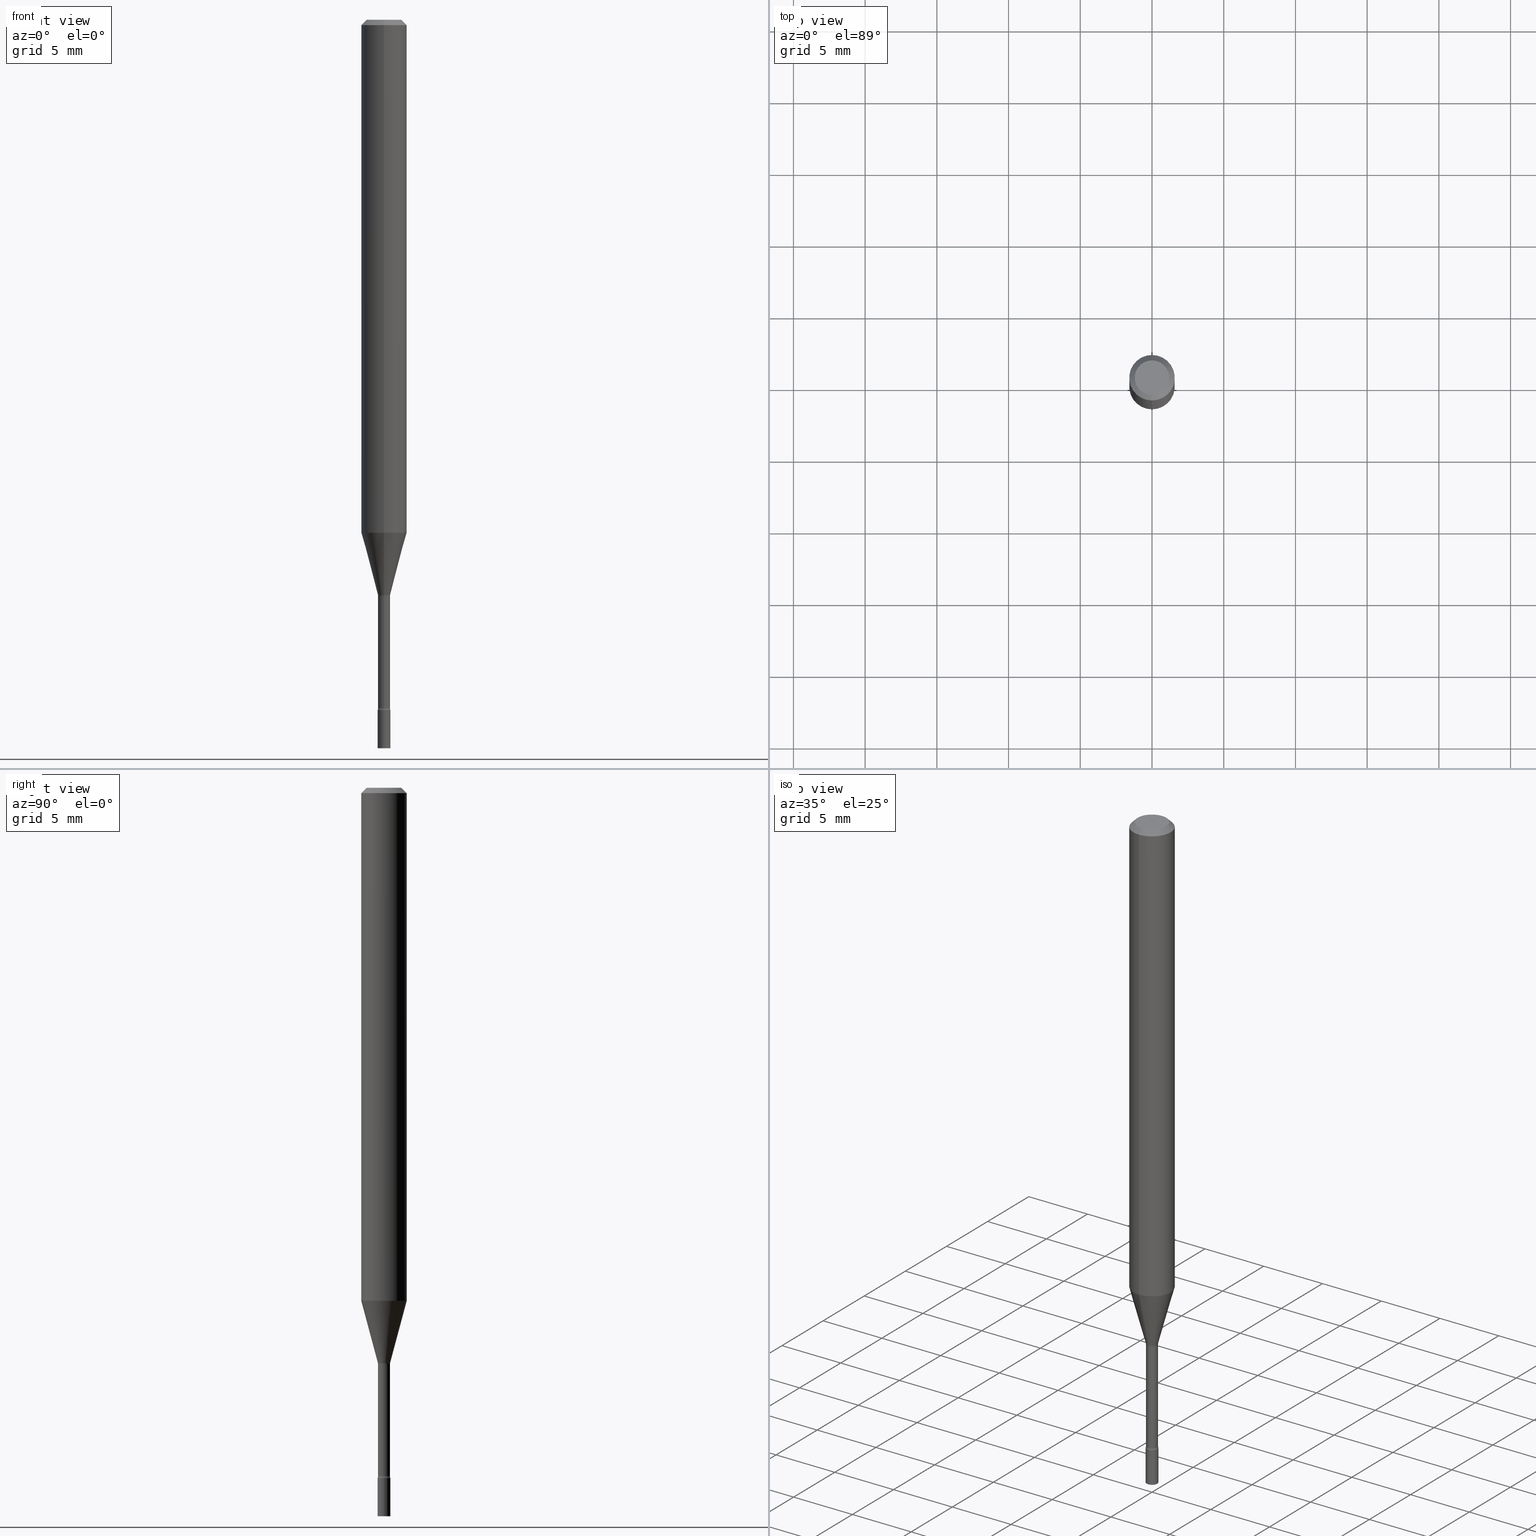
[diagram: canonical four-view strip — front | top / right | iso, engineering-drawing reading convention]
A machine part, canonical four-view strip (front | top / right | iso — engineering-drawing reading convention). The complete STEP part file that produces these views, byte-faithful:
ISO-10303-21;
HEADER;
FILE_DESCRIPTION (( 'STEP AP203' ),
    '1' );
FILE_NAME ('03487.STEP',
    '2024-03-08T21:30:55',
    ( '' ),
    ( '' ),
    'SwSTEP 2.0',
    'SolidWorks 2023',
    '' );
FILE_SCHEMA (( 'CONFIG_CONTROL_DESIGN' ));
ENDSEC;

DATA;
#1 =( CONVERSION_BASED_UNIT ( 'INCH', #338 ) LENGTH_UNIT ( ) NAMED_UNIT ( #52 ) );
#2 = CARTESIAN_POINT ( 'NONE',  ( 1.222018468595585719E-16, 0.01749999999999301767, -2.000000000000000000 ) ) ;
#3 = CC_DESIGN_PERSON_AND_ORGANIZATION_ASSIGNMENT ( #205, #417, ( #334 ) ) ;
#4 = PERSON_AND_ORGANIZATION ( #108, #89 ) ;
#5 = DIRECTION ( 'NONE',  ( -6.982962677686265133E-15, -1.000000000000000000, 0.000000000000000000 ) ) ;
#6 = CARTESIAN_POINT ( 'NONE',  ( 0.000000000000000000, 0.000000000000000000, 0.000000000000000000 ) ) ;
#7 = CARTESIAN_POINT ( 'NONE',  ( -1.222018468594633662E-16, -0.01750000000000662484, -1.894999999999999796 ) ) ;
#8 = PRODUCT ( '03487', '03487', '', ( #56 ) ) ;
#9 = DATE_AND_TIME ( #133, #181 ) ;
#10 = AXIS2_PLACEMENT_3D ( 'NONE', #101, #261, #152 ) ;
#11 = PLANE ( 'NONE',  #445 ) ;
#12 = CIRCLE ( 'NONE', #345, 0.06250000000000000000 ) ;
#13 = APPLICATION_PROTOCOL_DEFINITION ( 'international standard', 'config_control_design', 1994, #84 ) ;
#14 = DIRECTION ( 'NONE',  ( 2.445498038093453575E-29, -3.491439477086658862E-15, -1.000000000000000000 ) ) ;
#15 = PRODUCT_RELATED_PRODUCT_CATEGORY ( 'detail', '', ( #8 ) ) ;
#16 = ORIENTED_EDGE ( 'NONE', *, *, #426, .F. ) ;
#17 = DIRECTION ( 'NONE',  ( -6.982962677686265922E-15, -1.000000000000000000, 0.000000000000000000 ) ) ;
#18 = ORIENTED_EDGE ( 'NONE', *, *, #440, .T. ) ;
#19 = MANIFOLD_SOLID_BREP ( 'Body-Move/Copy2[1]', #80 ) ;
#20 = CARTESIAN_POINT ( 'NONE',  ( -1.148697360479003729E-16, -0.01645000000000552270, -1.581974787463811039 ) ) ;
#21 = CONICAL_SURFACE ( 'NONE', #461, 0.01696111260566397771, 0.2617993877991496299 ) ;
#22 = AXIS2_PLACEMENT_3D ( 'NONE', #457, #14, #376 ) ;
#23 = VECTOR ( 'NONE', #121, 39.37007874015748143 ) ;
#24 = CC_DESIGN_PERSON_AND_ORGANIZATION_ASSIGNMENT ( #208, #449, ( #334 ) ) ;
#25 = CARTESIAN_POINT ( 'NONE',  ( -0.01750000000000000167, 1.243449787580175444E-16, -8.608136407946085539E-31 ) ) ;
#26 = DIRECTION ( 'NONE',  ( -2.445498038093453575E-29, 3.491439477086658862E-15, 1.000000000000000000 ) ) ;
#27 = FACE_OUTER_BOUND ( 'NONE', #309, .T. ) ;
#28 = EDGE_CURVE ( 'NONE', #100, #94, #38, .T. ) ;
#29 = VECTOR ( 'NONE', #138, 39.37007874015748143 ) ;
#30 = CC_DESIGN_SECURITY_CLASSIFICATION ( #403, ( #334 ) ) ;
#31 = DIRECTION ( 'NONE',  ( -2.445498038093453575E-29, 3.491439477086658862E-15, 1.000000000000000000 ) ) ;
#32 = EDGE_CURVE ( 'NONE', #198, #276, #333, .T. ) ;
#33 = DIRECTION ( 'NONE',  ( -6.982962677686265922E-15, -1.000000000000000000, 3.483106191921935554E-15 ) ) ;
#34 = VERTEX_POINT ( 'NONE', #495 ) ;
#35 = EDGE_CURVE ( 'NONE', #257, #34, #336, .T. ) ;
#36 = DIRECTION ( 'NONE',  ( -6.982962677686265133E-15, -1.000000000000000000, 3.491439477086658862E-15 ) ) ;
#37 = ORIENTED_EDGE ( 'NONE', *, *, #109, .F. ) ;
#38 = CIRCLE ( 'NONE', #173, 0.01750000000000000167 ) ;
#39 =( GEOMETRIC_REPRESENTATION_CONTEXT ( 3 ) GLOBAL_UNCERTAINTY_ASSIGNED_CONTEXT ( ( #459 ) ) GLOBAL_UNIT_ASSIGNED_CONTEXT ( ( #1, #87, #447 ) ) REPRESENTATION_CONTEXT ( 'NONE', 'WORKASPACE' ) );
#40 = FACE_OUTER_BOUND ( 'NONE', #96, .T. ) ;
#41 = ORIENTED_EDGE ( 'NONE', *, *, #32, .T. ) ;
#42 = CARTESIAN_POINT ( 'NONE',  ( 4.620680557649244882E-29, -6.597107229085755306E-15, -1.889486607215153047 ) ) ;
#43 = VERTEX_POINT ( 'NONE', #176 ) ;
#44 = COORDINATED_UNIVERSAL_TIME_OFFSET ( 5, 0, .BEHIND. ) ;
#45 = FACE_OUTER_BOUND ( 'NONE', #140, .T. ) ;
#46 = CC_DESIGN_PERSON_AND_ORGANIZATION_ASSIGNMENT ( #331, #378, ( #8 ) ) ;
#47 = APPROVAL_ROLE ( '' ) ;
#48 = CIRCLE ( 'NONE', #145, 0.01500000000000002720 ) ;
#49 = CARTESIAN_POINT ( 'NONE',  ( 1.205159535236746208E-16, 0.01696111260565846823, -1.578092501787273116 ) ) ;
#50 = DIRECTION ( 'NONE',  ( 1.000000000000000000, 0.000000000000000000, 0.000000000000000000 ) ) ;
#51 = LINE ( 'NONE', #490, #29 ) ;
#52 = DIMENSIONAL_EXPONENTS ( 1.000000000000000000, 0.000000000000000000, 0.000000000000000000, 0.000000000000000000, 0.000000000000000000, 0.000000000000000000, 0.000000000000000000 ) ;
#53 = SECURITY_CLASSIFICATION_LEVEL ( 'unclassified' ) ;
#54 = LINE ( 'NONE', #49, #253 ) ;
#55 = ORIENTED_EDGE ( 'NONE', *, *, #250, .F. ) ;
#56 = MECHANICAL_CONTEXT ( 'NONE', #84, 'mechanical' ) ;
#57 = AXIS2_PLACEMENT_3D ( 'NONE', #275, #366, #443 ) ;
#58 = DIRECTION ( 'NONE',  ( -2.445498038093453575E-29, 3.491439477086658862E-15, 1.000000000000000000 ) ) ;
#59 = APPLICATION_CONTEXT ( 'configuration controlled 3d designs of mechanical parts and assemblies' ) ;
#60 = CIRCLE ( 'NONE', #221, 0.01696111260566397771 ) ;
#61 = ORIENTED_EDGE ( 'NONE', *, *, #371, .F. ) ;
#62 = CARTESIAN_POINT ( 'NONE',  ( 1.168842800325365252E-16, 0.01645000000000000975, -5.743417939807557706E-17 ) ) ;
#63 = CALENDAR_DATE ( 2024, 8, 3 ) ;
#64 = CARTESIAN_POINT ( 'NONE',  ( -2.196141762131871604E-16, -0.03145000000000663931, -1.889486607215153047 ) ) ;
#65 = EDGE_CURVE ( 'NONE', #342, #257, #54, .T. ) ;
#66 = EDGE_LOOP ( 'NONE', ( #404, #419, #154, #86 ) ) ;
#67 = DIRECTION ( 'NONE',  ( -6.982962677686265133E-15, -1.000000000000000000, 3.491439477086659256E-15 ) ) ;
#68 = CIRCLE ( 'NONE', #489, 0.01645000000000002363 ) ;
#69 = DIRECTION ( 'NONE',  ( -2.445468806185136597E-29, 3.491481338843145583E-15, 1.000000000000000000 ) ) ;
#70 = CARTESIAN_POINT ( 'NONE',  ( 3.859222117050766275E-29, -5.509814459234533825E-15, -1.578092501787273116 ) ) ;
#71 = EDGE_CURVE ( 'NONE', #316, #456, #213, .T. ) ;
#72 = AXIS2_PLACEMENT_3D ( 'NONE', #432, #468, #464 ) ;
#73 = AXIS2_PLACEMENT_3D ( 'NONE', #477, #163, #33 ) ;
#74 = CARTESIAN_POINT ( 'NONE',  ( 4.634163387720833649E-29, -6.616357137107760427E-15, -1.894999999999999796 ) ) ;
#75 = ORIENTED_EDGE ( 'NONE', *, *, #28, .T. ) ;
#76 = DIRECTION ( 'NONE',  ( -2.445498038093453575E-29, 3.491439477086658862E-15, 1.000000000000000000 ) ) ;
#77 = DIRECTION ( 'NONE',  ( -2.445468806185136597E-29, 3.491481338843145583E-15, 1.000000000000000000 ) ) ;
#78 = CYLINDRICAL_SURFACE ( 'NONE', #90, 0.06250000000000000000 ) ;
#79 = ORIENTED_EDGE ( 'NONE', *, *, #165, .F. ) ;
#80 = CLOSED_SHELL ( 'NONE', ( #310, #344, #416, #130 ) ) ;
#81 = AXIS2_PLACEMENT_3D ( 'NONE', #74, #313, #237 ) ;
#82 = CARTESIAN_POINT ( 'NONE',  ( -4.364351673553573540E-16, -0.06250000000000494049, -1.408139060311453195 ) ) ;
#83 = ORIENTED_EDGE ( 'NONE', *, *, #142, .F. ) ;
#84 = APPLICATION_CONTEXT ( 'configuration controlled 3d designs of mechanical parts and assemblies' ) ;
#85 = CALENDAR_DATE ( 2024, 8, 3 ) ;
#86 = ORIENTED_EDGE ( 'NONE', *, *, #32, .F. ) ;
#87 =( NAMED_UNIT ( * ) PLANE_ANGLE_UNIT ( ) SI_UNIT ( $, .RADIAN. ) );
#88 = DIRECTION ( 'NONE',  ( -2.445498038093453295E-29, 3.491439477086658862E-15, 1.000000000000000000 ) ) ;
#89 = ORGANIZATION ( 'UNSPECIFIED', 'UNSPECIFIED', '' ) ;
#90 = AXIS2_PLACEMENT_3D ( 'NONE', #435, #511, #156 ) ;
#91 = DIRECTION ( 'NONE',  ( 7.105427357601001859E-15, 1.000000000000000000, 0.000000000000000000 ) ) ;
#92 = CALENDAR_DATE ( 2024, 8, 3 ) ;
#93 = PLANE ( 'NONE',  #350 ) ;
#94 = VERTEX_POINT ( 'NONE', #374 ) ;
#95 = CARTESIAN_POINT ( 'NONE',  ( 0.000000000000000000, 0.000000000000000000, 0.000000000000000000 ) ) ;
#96 = EDGE_LOOP ( 'NONE', ( #381, #119, #510, #295 ) ) ;
#97 = ADVANCED_FACE ( 'NONE', ( #206 ), #412, .T. ) ;
#98 = VECTOR ( 'NONE', #503, 39.37007874015748854 ) ;
#99 = LINE ( 'NONE', #488, #227 ) ;
#100 = VERTEX_POINT ( 'NONE', #209 ) ;
#101 = CARTESIAN_POINT ( 'NONE',  ( 3.668247057140187510E-31, -5.237159215629998202E-17, -0.01500000000000003067 ) ) ;
#102 = APPROVAL ( #454, 'UNSPECIFIED' ) ;
#103 = VERTEX_POINT ( 'NONE', #7 ) ;
#104 = DIRECTION ( 'NONE',  ( 1.000000000000000000, -6.982962677686248567E-15, 0.000000000000000000 ) ) ;
#105 = FACE_OUTER_BOUND ( 'NONE', #279, .T. ) ;
#106 = VECTOR ( 'NONE', #88, 39.37007874015748143 ) ;
#107 = APPROVAL_PERSON_ORGANIZATION ( #414, #102, #47 ) ;
#108 = PERSON ( 'UNSPECIFIED', 'UNSPECIFIED', 'UNSPECIFIED', ('UNSPECIFIED'), ('UNSPECIFIED'), ('UNSPECIFIED') ) ;
#109 = EDGE_CURVE ( 'NONE', #358, #276, #249, .T. ) ;
#110 = FACE_OUTER_BOUND ( 'NONE', #234, .T. ) ;
#111 = EDGE_CURVE ( 'NONE', #409, #43, #99, .T. ) ;
#112 = CARTESIAN_POINT ( 'NONE',  ( 4.634218782187094306E-29, -6.616277809079216998E-15, -1.894999999999999796 ) ) ;
#113 = ORIENTED_EDGE ( 'NONE', *, *, #28, .F. ) ;
#114 = DIRECTION ( 'NONE',  ( -6.982962677686265922E-15, -1.000000000000000000, 4.370956789862821150E-15 ) ) ;
#115 = ORIENTED_EDGE ( 'NONE', *, *, #410, .F. ) ;
#116 = CIRCLE ( 'NONE', #220, 0.01645000000000002363 ) ;
#117 = CONICAL_SURFACE ( 'NONE', #137, 0.01696111260566397771, 0.2617993877991496299 ) ;
#118 = DIRECTION ( 'NONE',  ( -6.982962677686266711E-15, -1.000000000000000000, 0.000000000000000000 ) ) ;
#119 = ORIENTED_EDGE ( 'NONE', *, *, #497, .F. ) ;
#120 = ADVANCED_FACE ( 'NONE', ( #256 ), #93, .F. ) ;
#121 = DIRECTION ( 'NONE',  ( -2.445468806185136877E-29, 3.491481338843145188E-15, 1.000000000000000000 ) ) ;
#122 = ORIENTED_EDGE ( 'NONE', *, *, #337, .F. ) ;
#123 = CARTESIAN_POINT ( 'NONE',  ( 0.000000000000000000, 0.000000000000000000, 0.000000000000000000 ) ) ;
#124 = ORIENTED_EDGE ( 'NONE', *, *, #406, .F. ) ;
#125 = CONICAL_SURFACE ( 'NONE', #22, 0.06250000000000000000, 0.7853981633974483900 ) ;
#126 = ADVANCED_FACE ( 'NONE', ( #294 ), #125, .T. ) ;
#127 = CC_DESIGN_APPROVAL ( #383, ( #471 ) ) ;
#128 = COORDINATED_UNIVERSAL_TIME_OFFSET ( 5, 0, .BEHIND. ) ;
#129 = ORIENTED_EDGE ( 'NONE', *, *, #217, .T. ) ;
#130 = ADVANCED_FACE ( 'NONE', ( #45 ), #11, .T. ) ;
#131 = DATE_AND_TIME ( #239, #438 ) ;
#132 = DIRECTION ( 'NONE',  ( 2.445498038093453575E-29, -3.491439477086658862E-15, -1.000000000000000000 ) ) ;
#133 = CALENDAR_DATE ( 2024, 8, 3 ) ;
#134 = LINE ( 'NONE', #287, #158 ) ;
#135 = CONICAL_SURFACE ( 'NONE', #195, 0.06250000000000000000, 0.7853981633974483900 ) ;
#136 = DIRECTION ( 'NONE',  ( -6.982962677686265133E-15, -1.000000000000000000, 0.000000000000000000 ) ) ;
#137 = AXIS2_PLACEMENT_3D ( 'NONE', #364, #31, #161 ) ;
#138 = DIRECTION ( 'NONE',  ( 4.937700262164548042E-15, 0.7071067811865451302, -0.7071067811865499042 ) ) ;
#139 = EDGE_CURVE ( 'NONE', #301, #276, #244, .T. ) ;
#140 = EDGE_LOOP ( 'NONE', ( #83, #124 ) ) ;
#141 = CARTESIAN_POINT ( 'NONE',  ( 1.222018468595560081E-16, 0.01749999999999338543, -1.894999999999999796 ) ) ;
#142 = EDGE_CURVE ( 'NONE', #480, #292, #185, .T. ) ;
#143 = DIRECTION ( 'NONE',  ( 1.000000000000000000, -6.982962677686248567E-15, 0.000000000000000000 ) ) ;
#144 = ADVANCED_FACE ( 'NONE', ( #251 ), #21, .T. ) ;
#145 = AXIS2_PLACEMENT_3D ( 'NONE', #304, #390, #347 ) ;
#146 = DIRECTION ( 'NONE',  ( -6.982962677686267499E-15, -1.000000000000000000, 0.000000000000000000 ) ) ;
#147 = ORIENTED_EDGE ( 'NONE', *, *, #201, .F. ) ;
#148 = CARTESIAN_POINT ( 'NONE',  ( 0.000000000000000000, 0.000000000000000000, 0.000000000000000000 ) ) ;
#149 = DIRECTION ( 'NONE',  ( -2.445498038093453295E-29, 3.491439477086658862E-15, 1.000000000000000000 ) ) ;
#150 = CARTESIAN_POINT ( 'NONE',  ( 0.000000000000000000, 0.000000000000000000, 0.000000000000000000 ) ) ;
#151 = AXIS2_PLACEMENT_3D ( 'NONE', #194, #363, #247 ) ;
#152 = DIRECTION ( 'NONE',  ( -6.982962677686265922E-15, -1.000000000000000000, 3.483106191921935554E-15 ) ) ;
#153 = DIRECTION ( 'NONE',  ( 1.000000000000000000, -6.982962677686265922E-15, 4.876176775795936353E-29 ) ) ;
#154 = ORIENTED_EDGE ( 'NONE', *, *, #109, .T. ) ;
#155 = ADVANCED_FACE ( 'NONE', ( #332 ), #135, .T. ) ;
#156 = DIRECTION ( 'NONE',  ( -6.982962677686265922E-15, -1.000000000000000000, 3.491439477086658862E-15 ) ) ;
#157 = ORIENTED_EDGE ( 'NONE', *, *, #371, .T. ) ;
#158 = VECTOR ( 'NONE', #452, 39.37007874015748143 ) ;
#159 = DIRECTION ( 'NONE',  ( -6.982962677686266711E-15, -1.000000000000000000, 3.491439477086659256E-15 ) ) ;
#160 = ORIENTED_EDGE ( 'NONE', *, *, #190, .T. ) ;
#161 = DIRECTION ( 'NONE',  ( -6.982962677686266711E-15, -1.000000000000000000, 0.000000000000000000 ) ) ;
#162 = EDGE_LOOP ( 'NONE', ( #283, #324 ) ) ;
#163 = DIRECTION ( 'NONE',  ( -2.445498038093453575E-29, 3.491439477086658862E-15, 1.000000000000000000 ) ) ;
#164 = ORIENTED_EDGE ( 'NONE', *, *, #406, .T. ) ;
#165 = EDGE_CURVE ( 'NONE', #316, #358, #116, .T. ) ;
#166 = CLOSED_SHELL ( 'NONE', ( #326, #236, #375, #155, #469, #144, #504, #97, #126, #487, #120, #262, #228, #433 ) ) ;
#167 = CIRCLE ( 'NONE', #264, 0.01696111260566397771 ) ;
#168 = DATE_AND_TIME ( #92, #306 ) ;
#169 = DIRECTION ( 'NONE',  ( -6.982962677686266711E-15, -1.000000000000000000, 0.000000000000000000 ) ) ;
#170 = DIRECTION ( 'NONE',  ( -2.445498038093453575E-29, 3.491439477086658862E-15, 1.000000000000000000 ) ) ;
#171 = EDGE_CURVE ( 'NONE', #192, #43, #134, .T. ) ;
#172 = DIRECTION ( 'NONE',  ( -2.445498038093453575E-29, 3.491439477086658862E-15, 1.000000000000000000 ) ) ;
#173 = AXIS2_PLACEMENT_3D ( 'NONE', #442, #77, #232 ) ;
#174 = DATE_TIME_ROLE ( 'classification_date' ) ;
#175 = DIRECTION ( 'NONE',  ( -1.000000000000000000, 6.982962677686265922E-15, -4.876176775795935793E-29 ) ) ;
#176 = CARTESIAN_POINT ( 'NONE',  ( -4.364351673553912750E-16, -0.06250000000000005551, -0.01499999999999981209 ) ) ;
#177 = EDGE_LOOP ( 'NONE', ( #446, #157, #365, #501 ) ) ;
#178 = FACE_OUTER_BOUND ( 'NONE', #66, .T. ) ;
#179 = ORIENTED_EDGE ( 'NONE', *, *, #484, .F. ) ;
#180 = LINE ( 'NONE', #25, #513 ) ;
#181 = LOCAL_TIME ( 16, 30, 55.00000000000000000, #486 ) ;
#182 = DIRECTION ( 'NONE',  ( -2.445498038093453575E-29, 3.491439477086658862E-15, 1.000000000000000000 ) ) ;
#183 = CARTESIAN_POINT ( 'NONE',  ( 3.868669994914111510E-29, -5.523435448950248304E-15, -1.581974787463811039 ) ) ;
#184 = MANIFOLD_SOLID_BREP ( 'Body-Move/Copy2[2]', #166 ) ;
#185 = CIRCLE ( 'NONE', #451, 0.01750000000000000167 ) ;
#186 = EDGE_LOOP ( 'NONE', ( #520, #392, #115, #147 ) ) ;
#187 = LOCAL_TIME ( 16, 30, 55.00000000000000000, #498 ) ;
#188 = PLANE ( 'NONE',  #81 ) ;
#189 = ORIENTED_EDGE ( 'NONE', *, *, #277, .F. ) ;
#190 = EDGE_CURVE ( 'NONE', #230, #34, #51, .T. ) ;
#191 = FACE_OUTER_BOUND ( 'NONE', #274, .T. ) ;
#192 = VERTEX_POINT ( 'NONE', #455 ) ;
#193 = CARTESIAN_POINT ( 'NONE',  ( 0.01750000000000000167, -7.105164524545800359E-15, -2.000000000000000000 ) ) ;
#194 = CARTESIAN_POINT ( 'NONE',  ( 3.868716239056058074E-29, -5.523369224706926142E-15, -1.581974787463811039 ) ) ;
#195 = AXIS2_PLACEMENT_3D ( 'NONE', #328, #132, #286 ) ;
#196 = AXIS2_PLACEMENT_3D ( 'NONE', #123, #396, #153 ) ;
#197 = FACE_OUTER_BOUND ( 'NONE', #512, .T. ) ;
#198 = VERTEX_POINT ( 'NONE', #470 ) ;
#199 = CYLINDRICAL_SURFACE ( 'NONE', #196, 0.01750000000000000167 ) ;
#200 = ORIENTED_EDGE ( 'NONE', *, *, #171, .T. ) ;
#201 = EDGE_CURVE ( 'NONE', #301, #409, #505, .T. ) ;
#202 = DIRECTION ( 'NONE',  ( 2.438088387897960049E-29, -3.491481338843145188E-15, -1.000000000000000000 ) ) ;
#203 = AXIS2_PLACEMENT_3D ( 'NONE', #148, #69, #302 ) ;
#204 = CC_DESIGN_APPROVAL ( #354, ( #403 ) ) ;
#205 = PERSON_AND_ORGANIZATION ( #108, #89 ) ;
#206 = FACE_OUTER_BOUND ( 'NONE', #177, .T. ) ;
#207 = CC_DESIGN_DATE_AND_TIME_ASSIGNMENT ( #9, #174, ( #403 ) ) ;
#208 = PERSON_AND_ORGANIZATION ( #108, #89 ) ;
#209 = CARTESIAN_POINT ( 'NONE',  ( 0.01750000000000000167, -6.738558983967269622E-15, -1.894999999999999796 ) ) ;
#210 = PERSON_AND_ORGANIZATION_ROLE ( 'classification_officer' ) ;
#211 = CARTESIAN_POINT ( 'NONE',  ( -1.148697360479391256E-16, -0.01645000000000000975, 5.743417939807557706E-17 ) ) ;
#212 = ORIENTED_EDGE ( 'NONE', *, *, #139, .F. ) ;
#213 = CIRCLE ( 'NONE', #325, 0.01500000000000001853 ) ;
#214 = DIRECTION ( 'NONE',  ( -6.982962677686265922E-15, -1.000000000000000000, 3.491439477086658862E-15 ) ) ;
#215 = ORIENTED_EDGE ( 'NONE', *, *, #142, .T. ) ;
#216 = DIRECTION ( 'NONE',  ( -6.982962677686265133E-15, -1.000000000000000000, 3.491439477086658862E-15 ) ) ;
#217 = EDGE_CURVE ( 'NONE', #43, #34, #314, .T. ) ;
#218 = ORIENTED_EDGE ( 'NONE', *, *, #337, .T. ) ;
#219 = DIRECTION ( 'NONE',  ( -1.000000000000000000, 6.982962677686265922E-15, -4.883557194083112340E-29 ) ) ;
#220 = AXIS2_PLACEMENT_3D ( 'NONE', #450, #170, #330 ) ;
#221 = AXIS2_PLACEMENT_3D ( 'NONE', #70, #321, #118 ) ;
#222 = CARTESIAN_POINT ( 'NONE',  ( 4.634163387720833649E-29, -6.616357137107760427E-15, -1.894999999999999796 ) ) ;
#223 = DIRECTION ( 'NONE',  ( -6.982962677686265133E-15, -1.000000000000000000, 0.000000000000000000 ) ) ;
#224 = CARTESIAN_POINT ( 'NONE',  ( 4.620735790948512888E-29, -6.597028131857518324E-15, -1.889486607215153047 ) ) ;
#225 = ORIENTED_EDGE ( 'NONE', *, *, #217, .F. ) ;
#226 = CARTESIAN_POINT ( 'NONE',  ( 3.316907271900976096E-16, 0.04749999999999999362, -1.803013248422673352E-16 ) ) ;
#227 = VECTOR ( 'NONE', #379, 39.37007874015748143 ) ;
#228 = ADVANCED_FACE ( 'NONE', ( #178 ), #352, .T. ) ;
#229 = CARTESIAN_POINT ( 'NONE',  ( 3.868669994914111510E-29, -5.523435448950248304E-15, -1.581974787463811039 ) ) ;
#230 = VERTEX_POINT ( 'NONE', #386 ) ;
#231 = CARTESIAN_POINT ( 'NONE',  ( -1.148697360478930266E-16, -0.01645000000000661905, -1.889486607215153047 ) ) ;
#232 = DIRECTION ( 'NONE',  ( 1.000000000000000000, -6.982962677686248567E-15, 0.000000000000000000 ) ) ;
#233 = FACE_OUTER_BOUND ( 'NONE', #162, .T. ) ;
#234 = EDGE_LOOP ( 'NONE', ( #271, #189, #473, #218 ) ) ;
#235 = AXIS2_PLACEMENT_3D ( 'NONE', #112, #382, #17 ) ;
#236 = ADVANCED_FACE ( 'NONE', ( #428 ), #340, .T. ) ;
#237 = DIRECTION ( 'NONE',  ( 1.000000000000000000, -6.982962677686265922E-15, 4.876176775795935793E-29 ) ) ;
#238 = ORIENTED_EDGE ( 'NONE', *, *, #71, .T. ) ;
#239 = CALENDAR_DATE ( 2024, 8, 3 ) ;
#240 = EDGE_LOOP ( 'NONE', ( #122, #16 ) ) ;
#241 = APPROVAL_ROLE ( '' ) ;
#242 = DIRECTION ( 'NONE',  ( 1.839019923739595977E-15, 0.2588190451025243477, 0.9659258262890673130 ) ) ;
#243 = EDGE_CURVE ( 'NONE', #316, #198, #430, .T. ) ;
#244 = CIRCLE ( 'NONE', #402, 0.01500000000000002720 ) ;
#245 = CIRCLE ( 'NONE', #431, 0.01750000000000000167 ) ;
#246 = DATE_AND_TIME ( #85, #388 ) ;
#247 = DIRECTION ( 'NONE',  ( -6.982962677686265133E-15, -1.000000000000000000, 0.000000000000000000 ) ) ;
#248 = APPROVAL_DATE_TIME ( #168, #102 ) ;
#249 = LINE ( 'NONE', #211, #106 ) ;
#250 = EDGE_CURVE ( 'NONE', #358, #103, #270, .T. ) ;
#251 = FACE_OUTER_BOUND ( 'NONE', #186, .T. ) ;
#252 = ORIENTED_EDGE ( 'NONE', *, *, #285, .F. ) ;
#253 = VECTOR ( 'NONE', #242, 39.37007874015748143 ) ;
#254 = AXIS2_PLACEMENT_3D ( 'NONE', #6, #290, #50 ) ;
#255 = DESIGN_CONTEXT ( 'detailed design', #59, 'design' ) ;
#256 = FACE_OUTER_BOUND ( 'NONE', #240, .T. ) ;
#257 = VERTEX_POINT ( 'NONE', #307 ) ;
#258 = SHAPE_DEFINITION_REPRESENTATION ( #341, #348 ) ;
#259 = DIRECTION ( 'NONE',  ( -6.982962677686265133E-15, -1.000000000000000000, 3.491439477086659256E-15 ) ) ;
#260 = ORIENTED_EDGE ( 'NONE', *, *, #299, .T. ) ;
#261 = DIRECTION ( 'NONE',  ( -2.445498038093453575E-29, 3.491439477086658862E-15, 1.000000000000000000 ) ) ;
#262 = ADVANCED_FACE ( 'NONE', ( #110 ), #377, .F. ) ;
#263 = AXIS2_PLACEMENT_3D ( 'NONE', #349, #499, #67 ) ;
#264 = AXIS2_PLACEMENT_3D ( 'NONE', #441, #76, #360 ) ;
#265 = CARTESIAN_POINT ( 'NONE',  ( -1.184388162973470360E-16, -0.01696111260566949067, -1.578092501787273116 ) ) ;
#266 = FACE_OUTER_BOUND ( 'NONE', #319, .T. ) ;
#267 = LINE ( 'NONE', #517, #23 ) ;
#268 = CARTESIAN_POINT ( 'NONE',  ( 4.634218782187094306E-29, -6.616277809079216998E-15, -1.894999999999999796 ) ) ;
#269 = EDGE_CURVE ( 'NONE', #94, #100, #361, .T. ) ;
#270 = CIRCLE ( 'NONE', #506, 0.01500000000000001853 ) ;
#271 = ORIENTED_EDGE ( 'NONE', *, *, #71, .F. ) ;
#272 = AXIS2_PLACEMENT_3D ( 'NONE', #493, #327, #136 ) ;
#273 = PLANE ( 'NONE',  #514 ) ;
#274 = EDGE_LOOP ( 'NONE', ( #400, #518, #225, #492 ) ) ;
#275 = CARTESIAN_POINT ( 'NONE',  ( 3.443601309354418931E-29, -4.916432304399119598E-15, -1.408139060311453417 ) ) ;
#276 = VERTEX_POINT ( 'NONE', #20 ) ;
#277 = EDGE_CURVE ( 'NONE', #358, #316, #68, .T. ) ;
#278 = CARTESIAN_POINT ( 'NONE',  ( 4.890937612370273194E-29, -6.982962677686291165E-15, -2.000000000000000000 ) ) ;
#279 = EDGE_LOOP ( 'NONE', ( #75, #312 ) ) ;
#280 = CIRCLE ( 'NONE', #57, 0.06250000000000000000 ) ;
#281 = APPROVAL_PERSON_ORGANIZATION ( #368, #383, #241 ) ;
#282 = APPLICATION_PROTOCOL_DEFINITION ( 'international standard', 'config_control_design', 1994, #59 ) ;
#283 = ORIENTED_EDGE ( 'NONE', *, *, #380, .T. ) ;
#284 = PERSON_AND_ORGANIZATION_ROLE ( 'creator' ) ;
#285 = EDGE_CURVE ( 'NONE', #292, #94, #180, .T. ) ;
#286 = DIRECTION ( 'NONE',  ( 6.982962677686265922E-15, 1.000000000000000000, -3.483106191921935554E-15 ) ) ;
#287 = CARTESIAN_POINT ( 'NONE',  ( -4.287811248607203282E-16, -0.06250000000000005551, -0.01499999999999981209 ) ) ;
#288 = CIRCLE ( 'NONE', #235, 0.01750000000000000167 ) ;
#289 = CIRCLE ( 'NONE', #453, 0.04749999999999999362 ) ;
#290 = DIRECTION ( 'NONE',  ( 0.000000000000000000, 0.000000000000000000, 1.000000000000000000 ) ) ;
#291 = CARTESIAN_POINT ( 'NONE',  ( -2.196141762131943341E-16, -0.03145000000000552215, -1.581974787463811039 ) ) ;
#292 = VERTEX_POINT ( 'NONE', #502 ) ;
#293 = APPROVAL_STATUS ( 'not_yet_approved' ) ;
#294 = FACE_OUTER_BOUND ( 'NONE', #483, .T. ) ;
#295 = ORIENTED_EDGE ( 'NONE', *, *, #508, .T. ) ;
#296 = CARTESIAN_POINT ( 'NONE',  ( 3.859222117050766275E-29, -5.509814459234533825E-15, -1.578092501787273116 ) ) ;
#297 = VECTOR ( 'NONE', #149, 39.37007874015748143 ) ;
#298 = APPROVAL_STATUS ( 'not_yet_approved' ) ;
#299 = EDGE_CURVE ( 'NONE', #342, #198, #48, .T. ) ;
#300 = DIRECTION ( 'NONE',  ( -2.445498038093453575E-29, 3.491439477086658862E-15, 1.000000000000000000 ) ) ;
#301 = VERTEX_POINT ( 'NONE', #265 ) ;
#302 = DIRECTION ( 'NONE',  ( 1.000000000000000000, -6.982962677686265922E-15, 4.876176775795936353E-29 ) ) ;
#303 = EDGE_CURVE ( 'NONE', #192, #230, #437, .T. ) ;
#304 = CARTESIAN_POINT ( 'NONE',  ( 2.234656903965901540E-16, 0.03144999999999447543, -1.581974787463811039 ) ) ;
#305 = AXIS2_PLACEMENT_3D ( 'NONE', #183, #389, #216 ) ;
#306 = LOCAL_TIME ( 16, 30, 55.00000000000000000, #44 ) ;
#307 = CARTESIAN_POINT ( 'NONE',  ( 4.440892098500969316E-16, 0.06249999999999507339, -1.408139060311453639 ) ) ;
#308 = DIRECTION ( 'NONE',  ( -2.445468806185136597E-29, 3.491481338843145583E-15, 1.000000000000000000 ) ) ;
#309 = EDGE_LOOP ( 'NONE', ( #179, #260, #41, #212 ) ) ;
#310 = ADVANCED_FACE ( 'NONE', ( #266 ), #434, .T. ) ;
#311 = CARTESIAN_POINT ( 'NONE',  ( 3.443601309354418931E-29, -4.916432304399119598E-15, -1.408139060311453417 ) ) ;
#312 = ORIENTED_EDGE ( 'NONE', *, *, #269, .T. ) ;
#313 = DIRECTION ( 'NONE',  ( -2.438088387897960049E-29, 3.491481338843145188E-15, 1.000000000000000000 ) ) ;
#314 = CIRCLE ( 'NONE', #10, 0.06250000000000000000 ) ;
#315 = CIRCLE ( 'NONE', #272, 0.01644999999999999934 ) ;
#316 = VERTEX_POINT ( 'NONE', #466 ) ;
#317 = AXIS2_PLACEMENT_3D ( 'NONE', #229, #399, #36 ) ;
#318 = DIRECTION ( 'NONE',  ( 1.000000000000000000, -6.982962677686248567E-15, 0.000000000000000000 ) ) ;
#319 = EDGE_LOOP ( 'NONE', ( #215, #448, #113, #476 ) ) ;
#320 = CC_DESIGN_DATE_AND_TIME_ASSIGNMENT ( #131, #408, ( #471 ) ) ;
#321 = DIRECTION ( 'NONE',  ( -2.445498038093453575E-29, 3.491439477086658862E-15, 1.000000000000000000 ) ) ;
#322 = EDGE_LOOP ( 'NONE', ( #439, #356, #429, #37 ) ) ;
#323 = DIRECTION ( 'NONE',  ( -2.445468806185136597E-29, 3.491481338843145583E-15, 1.000000000000000000 ) ) ;
#324 = ORIENTED_EDGE ( 'NONE', *, *, #303, .T. ) ;
#325 = AXIS2_PLACEMENT_3D ( 'NONE', #485, #372, #91 ) ;
#326 = ADVANCED_FACE ( 'NONE', ( #27 ), #500, .F. ) ;
#327 = DIRECTION ( 'NONE',  ( -2.445498038093453575E-29, 3.491439477086658862E-15, 1.000000000000000000 ) ) ;
#328 = CARTESIAN_POINT ( 'NONE',  ( 3.668247057140187510E-31, -5.237159215629998202E-17, -0.01500000000000003067 ) ) ;
#329 = APPROVAL_DATE_TIME ( #246, #383 ) ;
#330 = DIRECTION ( 'NONE',  ( -6.982962677686265133E-15, -1.000000000000000000, 0.000000000000000000 ) ) ;
#331 = PERSON_AND_ORGANIZATION ( #108, #89 ) ;
#332 = FACE_OUTER_BOUND ( 'NONE', #516, .T. ) ;
#333 = CIRCLE ( 'NONE', #151, 0.01644999999999999934 ) ;
#334 = PRODUCT_DEFINITION_FORMATION_WITH_SPECIFIED_SOURCE ( 'ANY', '', #8, .NOT_KNOWN. ) ;
#335 = PERSON_AND_ORGANIZATION ( #108, #89 ) ;
#336 = LINE ( 'NONE', #420, #421 ) ;
#337 = EDGE_CURVE ( 'NONE', #103, #456, #288, .T. ) ;
#338 = LENGTH_MEASURE_WITH_UNIT ( LENGTH_MEASURE( 0.02539999999999999897 ), #373 );
#339 = DIRECTION ( 'NONE',  ( -1.000000000000000000, 6.982962677686265922E-15, -4.883557194083112340E-29 ) ) ;
#340 = CYLINDRICAL_SURFACE ( 'NONE', #263, 0.01645000000000000975 ) ;
#341 = PRODUCT_DEFINITION_SHAPE ( 'NONE', 'NONE',  #471 ) ;
#342 = VERTEX_POINT ( 'NONE', #467 ) ;
#343 = TOROIDAL_SURFACE ( 'NONE', #474, 0.03145000000000004042, 0.01500000000000001853 ) ;
#344 = ADVANCED_FACE ( 'NONE', ( #105 ), #188, .T. ) ;
#345 = AXIS2_PLACEMENT_3D ( 'NONE', #311, #519, #114 ) ;
#346 = DIRECTION ( 'NONE',  ( -2.445468806185136877E-29, 3.491481338843145188E-15, 1.000000000000000000 ) ) ;
#347 = DIRECTION ( 'NONE',  ( 7.105427357601000281E-15, 1.000000000000000000, 0.000000000000000000 ) ) ;
#348 = ADVANCED_BREP_SHAPE_REPRESENTATION ( '03487', ( #19, #184, #254 ), #39 ) ;
#349 = CARTESIAN_POINT ( 'NONE',  ( 0.000000000000000000, 0.000000000000000000, 0.000000000000000000 ) ) ;
#350 = AXIS2_PLACEMENT_3D ( 'NONE', #141, #415, #460 ) ;
#351 = CIRCLE ( 'NONE', #73, 0.06250000000000000000 ) ;
#352 = CYLINDRICAL_SURFACE ( 'NONE', #387, 0.01645000000000000975 ) ;
#353 = EDGE_LOOP ( 'NONE', ( #252, #164, #397, #436 ) ) ;
#354 = APPROVAL ( #298, 'UNSPECIFIED' ) ;
#355 = DIRECTION ( 'NONE',  ( -2.445498038093453575E-29, 3.491439477086658862E-15, 1.000000000000000000 ) ) ;
#356 = ORIENTED_EDGE ( 'NONE', *, *, #243, .T. ) ;
#357 = CARTESIAN_POINT ( 'NONE',  ( 1.243449787580639146E-16, 0.01749999999999339237, -1.894999999999999796 ) ) ;
#358 = VERTEX_POINT ( 'NONE', #231 ) ;
#359 = CC_DESIGN_PERSON_AND_ORGANIZATION_ASSIGNMENT ( #4, #210, ( #403 ) ) ;
#360 = DIRECTION ( 'NONE',  ( -6.982962677686266711E-15, -1.000000000000000000, 0.000000000000000000 ) ) ;
#361 = CIRCLE ( 'NONE', #370, 0.01750000000000000167 ) ;
#362 = TOROIDAL_SURFACE ( 'NONE', #317, 0.03144999999999999879, 0.01500000000000002547 ) ;
#363 = DIRECTION ( 'NONE',  ( -2.445498038093453575E-29, 3.491439477086658862E-15, 1.000000000000000000 ) ) ;
#364 = CARTESIAN_POINT ( 'NONE',  ( 3.859222117050766275E-29, -5.509814459234533825E-15, -1.578092501787273116 ) ) ;
#365 = ORIENTED_EDGE ( 'NONE', *, *, #111, .T. ) ;
#366 = DIRECTION ( 'NONE',  ( -2.445498038093453575E-29, 3.491439477086658862E-15, 1.000000000000000000 ) ) ;
#367 = ORIENTED_EDGE ( 'NONE', *, *, #484, .T. ) ;
#368 = PERSON_AND_ORGANIZATION ( #108, #89 ) ;
#369 = DIRECTION ( 'NONE',  ( -2.445468806185136597E-29, 3.491481338843145583E-15, 1.000000000000000000 ) ) ;
#370 = AXIS2_PLACEMENT_3D ( 'NONE', #222, #308, #104 ) ;
#371 = EDGE_CURVE ( 'NONE', #257, #409, #280, .T. ) ;
#372 = DIRECTION ( 'NONE',  ( 1.000000000000000000, -7.105427357601001070E-15, 4.926314995883421790E-29 ) ) ;
#373 =( LENGTH_UNIT ( ) NAMED_UNIT ( * ) SI_UNIT ( $, .METRE. ) );
#374 = CARTESIAN_POINT ( 'NONE',  ( -0.01750000000000000167, -6.675314928639007365E-15, -1.894999999999999796 ) ) ;
#375 = ADVANCED_FACE ( 'NONE', ( #405 ), #343, .F. ) ;
#376 = DIRECTION ( 'NONE',  ( 6.982962677686265922E-15, 1.000000000000000000, -3.483106191921935554E-15 ) ) ;
#377 = TOROIDAL_SURFACE ( 'NONE', #72, 0.03145000000000004042, 0.01500000000000001853 ) ;
#378 = PERSON_AND_ORGANIZATION_ROLE ( 'design_owner' ) ;
#379 = DIRECTION ( 'NONE',  ( -2.445498038093453295E-29, 3.491439477086658862E-15, 1.000000000000000000 ) ) ;
#380 = EDGE_CURVE ( 'NONE', #230, #192, #289, .T. ) ;
#381 = ORIENTED_EDGE ( 'NONE', *, *, #299, .F. ) ;
#382 = DIRECTION ( 'NONE',  ( -2.445498038093453575E-29, 3.491439477086658862E-15, 1.000000000000000000 ) ) ;
#383 = APPROVAL ( #293, 'UNSPECIFIED' ) ;
#384 = ORIENTED_EDGE ( 'NONE', *, *, #303, .F. ) ;
#385 = APPROVAL_DATE_TIME ( #462, #354 ) ;
#386 = CARTESIAN_POINT ( 'NONE',  ( 3.840629472727447874E-16, 0.04749999999999999362, -1.947592745229184365E-16 ) ) ;
#387 = AXIS2_PLACEMENT_3D ( 'NONE', #150, #300, #259 ) ;
#388 = LOCAL_TIME ( 16, 30, 55.00000000000000000, #128 ) ;
#389 = DIRECTION ( 'NONE',  ( -2.445498038093453575E-29, 3.491439477086658862E-15, 1.000000000000000000 ) ) ;
#390 = DIRECTION ( 'NONE',  ( 1.000000000000000000, -7.105427357601001070E-15, 4.926314995883421790E-29 ) ) ;
#391 = DIRECTION ( 'NONE',  ( -6.982962677686266711E-15, -1.000000000000000000, 3.491439477086659256E-15 ) ) ;
#392 = ORIENTED_EDGE ( 'NONE', *, *, #65, .T. ) ;
#393 = AXIS2_PLACEMENT_3D ( 'NONE', #95, #58, #214 ) ;
#394 = CIRCLE ( 'NONE', #491, 0.01750000000000000167 ) ;
#395 = DIRECTION ( 'NONE',  ( 2.445498038093453295E-29, -3.491439477086658862E-15, -1.000000000000000000 ) ) ;
#396 = DIRECTION ( 'NONE',  ( -2.445468806185136597E-29, 3.491481338843145583E-15, 1.000000000000000000 ) ) ;
#397 = ORIENTED_EDGE ( 'NONE', *, *, #463, .T. ) ;
#398 = CC_DESIGN_PERSON_AND_ORGANIZATION_ASSIGNMENT ( #335, #284, ( #471 ) ) ;
#399 = DIRECTION ( 'NONE',  ( -2.445498038093453575E-29, 3.491439477086658862E-15, 1.000000000000000000 ) ) ;
#400 = ORIENTED_EDGE ( 'NONE', *, *, #410, .T. ) ;
#401 = DIRECTION ( 'NONE',  ( 6.982962677686265922E-15, 1.000000000000000000, -3.491439477086658862E-15 ) ) ;
#402 = AXIS2_PLACEMENT_3D ( 'NONE', #291, #339, #5 ) ;
#403 = SECURITY_CLASSIFICATION ( '', '', #53 ) ;
#404 = ORIENTED_EDGE ( 'NONE', *, *, #243, .F. ) ;
#405 = FACE_OUTER_BOUND ( 'NONE', #407, .T. ) ;
#406 = EDGE_CURVE ( 'NONE', #292, #480, #245, .T. ) ;
#407 = EDGE_LOOP ( 'NONE', ( #79, #238, #444, #55 ) ) ;
#408 = DATE_TIME_ROLE ( 'creation_date' ) ;
#409 = VERTEX_POINT ( 'NONE', #82 ) ;
#410 = EDGE_CURVE ( 'NONE', #409, #257, #12, .T. ) ;
#411 = COORDINATED_UNIVERSAL_TIME_OFFSET ( 5, 0, .BEHIND. ) ;
#412 = CYLINDRICAL_SURFACE ( 'NONE', #393, 0.06250000000000000000 ) ;
#413 = AXIS2_PLACEMENT_3D ( 'NONE', #507, #26, #391 ) ;
#414 = PERSON_AND_ORGANIZATION ( #108, #89 ) ;
#415 = DIRECTION ( 'NONE',  ( -2.445498038093453295E-29, 3.491439477086658862E-15, 1.000000000000000000 ) ) ;
#416 = ADVANCED_FACE ( 'NONE', ( #509 ), #199, .T. ) ;
#417 = PERSON_AND_ORGANIZATION_ROLE ( 'design_supplier' ) ;
#418 = DIRECTION ( 'NONE',  ( -2.445498038093453295E-29, 3.491439477086658862E-15, 1.000000000000000000 ) ) ;
#419 = ORIENTED_EDGE ( 'NONE', *, *, #165, .T. ) ;
#420 = CARTESIAN_POINT ( 'NONE',  ( 4.440892098500625669E-16, 0.06250000000000000000, -2.182149673179161788E-16 ) ) ;
#421 = VECTOR ( 'NONE', #418, 39.37007874015748143 ) ;
#422 = CC_DESIGN_APPROVAL ( #102, ( #334 ) ) ;
#423 = ORIENTED_EDGE ( 'NONE', *, *, #171, .F. ) ;
#424 = APPROVAL_ROLE ( '' ) ;
#425 = CARTESIAN_POINT ( 'NONE',  ( -1.184388162973470360E-16, -0.01696111260566949067, -1.578092501787273116 ) ) ;
#426 = EDGE_CURVE ( 'NONE', #456, #103, #394, .T. ) ;
#427 = PERSON_AND_ORGANIZATION ( #108, #89 ) ;
#428 = FACE_OUTER_BOUND ( 'NONE', #322, .T. ) ;
#429 = ORIENTED_EDGE ( 'NONE', *, *, #508, .F. ) ;
#430 = LINE ( 'NONE', #62, #297 ) ;
#431 = AXIS2_PLACEMENT_3D ( 'NONE', #278, #323, #318 ) ;
#432 = CARTESIAN_POINT ( 'NONE',  ( 4.620680557649244882E-29, -6.597107229085755306E-15, -1.889486607215153047 ) ) ;
#433 = ADVANCED_FACE ( 'NONE', ( #40 ), #362, .F. ) ;
#434 = CYLINDRICAL_SURFACE ( 'NONE', #203, 0.01750000000000000167 ) ;
#435 = CARTESIAN_POINT ( 'NONE',  ( 0.000000000000000000, 0.000000000000000000, 0.000000000000000000 ) ) ;
#436 = ORIENTED_EDGE ( 'NONE', *, *, #269, .F. ) ;
#437 = CIRCLE ( 'NONE', #413, 0.04749999999999999362 ) ;
#438 = LOCAL_TIME ( 16, 30, 55.00000000000000000, #411 ) ;
#439 = ORIENTED_EDGE ( 'NONE', *, *, #277, .T. ) ;
#440 = EDGE_CURVE ( 'NONE', #34, #43, #351, .T. ) ;
#441 = CARTESIAN_POINT ( 'NONE',  ( 3.859222117050766275E-29, -5.509814459234533825E-15, -1.578092501787273116 ) ) ;
#442 = CARTESIAN_POINT ( 'NONE',  ( 4.634163387720833649E-29, -6.616357137107760427E-15, -1.894999999999999796 ) ) ;
#443 = DIRECTION ( 'NONE',  ( -6.982962677686265922E-15, -1.000000000000000000, 4.370956789862821150E-15 ) ) ;
#444 = ORIENTED_EDGE ( 'NONE', *, *, #426, .T. ) ;
#445 = AXIS2_PLACEMENT_3D ( 'NONE', #2, #202, #175 ) ;
#446 = ORIENTED_EDGE ( 'NONE', *, *, #35, .F. ) ;
#447 =( NAMED_UNIT ( * ) SI_UNIT ( $, .STERADIAN. ) SOLID_ANGLE_UNIT ( ) );
#448 = ORIENTED_EDGE ( 'NONE', *, *, #285, .T. ) ;
#449 = PERSON_AND_ORGANIZATION_ROLE ( 'creator' ) ;
#450 = CARTESIAN_POINT ( 'NONE',  ( 4.620735790948512888E-29, -6.597028131857518324E-15, -1.889486607215153047 ) ) ;
#451 = AXIS2_PLACEMENT_3D ( 'NONE', #494, #369, #143 ) ;
#452 = DIRECTION ( 'NONE',  ( -4.851104656540964275E-15, -0.7071067811865500152, -0.7071067811865450192 ) ) ;
#453 = AXIS2_PLACEMENT_3D ( 'NONE', #481, #479, #159 ) ;
#454 = APPROVAL_STATUS ( 'not_yet_approved' ) ;
#455 = CARTESIAN_POINT ( 'NONE',  ( -3.773273898774340269E-16, -0.04749999999999999362, 1.369274758003141297E-16 ) ) ;
#456 = VERTEX_POINT ( 'NONE', #357 ) ;
#457 = CARTESIAN_POINT ( 'NONE',  ( 3.668247057140187510E-31, -5.237159215629998202E-17, -0.01500000000000003067 ) ) ;
#458 = ORIENTED_EDGE ( 'NONE', *, *, #201, .T. ) ;
#459 = UNCERTAINTY_MEASURE_WITH_UNIT (LENGTH_MEASURE( 1.000000000000000082E-05 ), #1, 'distance_accuracy_value', 'NONE');
#460 = DIRECTION ( 'NONE',  ( -6.982962677686265922E-15, -1.000000000000000000, 3.491439477086658862E-15 ) ) ;
#461 = AXIS2_PLACEMENT_3D ( 'NONE', #296, #172, #169 ) ;
#462 = DATE_AND_TIME ( #63, #187 ) ;
#463 = EDGE_CURVE ( 'NONE', #480, #100, #267, .T. ) ;
#464 = DIRECTION ( 'NONE',  ( -6.982962677686265133E-15, -1.000000000000000000, 3.491439477086658862E-15 ) ) ;
#465 = ORIENTED_EDGE ( 'NONE', *, *, #380, .F. ) ;
#466 = CARTESIAN_POINT ( 'NONE',  ( 1.206146293953234297E-16, 0.01644999999999342821, -1.889486607215153047 ) ) ;
#467 = CARTESIAN_POINT ( 'NONE',  ( 2.823025816868859611E-16, 0.01696111260565846823, -1.578092501787273116 ) ) ;
#468 = DIRECTION ( 'NONE',  ( -2.445498038093453575E-29, 3.491439477086658862E-15, 1.000000000000000000 ) ) ;
#469 = ADVANCED_FACE ( 'NONE', ( #191 ), #78, .T. ) ;
#470 = CARTESIAN_POINT ( 'NONE',  ( 1.168842800325827475E-16, 0.01644999999999447252, -1.581974787463811039 ) ) ;
#471 = PRODUCT_DEFINITION ( 'UNKNOWN', '', #334, #255 ) ;
#472 = DIRECTION ( 'NONE',  ( -6.982962677686265922E-15, -1.000000000000000000, 0.000000000000000000 ) ) ;
#473 = ORIENTED_EDGE ( 'NONE', *, *, #250, .T. ) ;
#474 = AXIS2_PLACEMENT_3D ( 'NONE', #42, #355, #515 ) ;
#475 = DIRECTION ( 'NONE',  ( -2.445498038093453575E-29, 3.491439477086658862E-15, 1.000000000000000000 ) ) ;
#476 = ORIENTED_EDGE ( 'NONE', *, *, #463, .F. ) ;
#477 = CARTESIAN_POINT ( 'NONE',  ( 3.668247057140187510E-31, -5.237159215629998202E-17, -0.01500000000000003067 ) ) ;
#478 = ORIENTED_EDGE ( 'NONE', *, *, #65, .F. ) ;
#479 = DIRECTION ( 'NONE',  ( -2.445498038093453575E-29, 3.491439477086658862E-15, 1.000000000000000000 ) ) ;
#480 = VERTEX_POINT ( 'NONE', #193 ) ;
#481 = CARTESIAN_POINT ( 'NONE',  ( 7.071377515777211874E-46, -1.009581125455151755E-31, -2.891589936130213496E-17 ) ) ;
#482 = APPROVAL_PERSON_ORGANIZATION ( #427, #354, #424 ) ;
#483 = EDGE_LOOP ( 'NONE', ( #423, #465, #160, #18 ) ) ;
#484 = EDGE_CURVE ( 'NONE', #342, #301, #60, .T. ) ;
#485 = CARTESIAN_POINT ( 'NONE',  ( 2.234656903965979440E-16, 0.03144999999999344154, -1.889486607215153047 ) ) ;
#486 = COORDINATED_UNIVERSAL_TIME_OFFSET ( 5, 0, .BEHIND. ) ;
#487 = ADVANCED_FACE ( 'NONE', ( #233 ), #273, .F. ) ;
#488 = CARTESIAN_POINT ( 'NONE',  ( -4.364351673553916201E-16, -0.06250000000000000000, 2.182149673179161788E-16 ) ) ;
#489 = AXIS2_PLACEMENT_3D ( 'NONE', #224, #182, #223 ) ;
#490 = CARTESIAN_POINT ( 'NONE',  ( 4.364351673553919652E-16, 0.06249999999999995143, -0.01500000000000024751 ) ) ;
#491 = AXIS2_PLACEMENT_3D ( 'NONE', #268, #475, #472 ) ;
#492 = ORIENTED_EDGE ( 'NONE', *, *, #111, .F. ) ;
#493 = CARTESIAN_POINT ( 'NONE',  ( 3.868716239056058074E-29, -5.523369224706926142E-15, -1.581974787463811039 ) ) ;
#494 = CARTESIAN_POINT ( 'NONE',  ( 4.890937612370273194E-29, -6.982962677686291165E-15, -2.000000000000000000 ) ) ;
#495 = CARTESIAN_POINT ( 'NONE',  ( 4.440892098500972274E-16, 0.06249999999999993755, -0.01500000000000024751 ) ) ;
#496 = ORIENTED_EDGE ( 'NONE', *, *, #190, .F. ) ;
#497 = EDGE_CURVE ( 'NONE', #301, #342, #167, .T. ) ;
#498 = COORDINATED_UNIVERSAL_TIME_OFFSET ( 5, 0, .BEHIND. ) ;
#499 = DIRECTION ( 'NONE',  ( -2.445498038093453575E-29, 3.491439477086658862E-15, 1.000000000000000000 ) ) ;
#500 = TOROIDAL_SURFACE ( 'NONE', #305, 0.03144999999999999879, 0.01500000000000002547 ) ;
#501 = ORIENTED_EDGE ( 'NONE', *, *, #440, .F. ) ;
#502 = CARTESIAN_POINT ( 'NONE',  ( -0.01750000000000000167, -6.675314928639007365E-15, -2.000000000000000000 ) ) ;
#503 = DIRECTION ( 'NONE',  ( -1.807323732225325801E-15, -0.2588190451025175753, 0.9659258262890690894 ) ) ;
#504 = ADVANCED_FACE ( 'NONE', ( #197 ), #117, .T. ) ;
#505 = LINE ( 'NONE', #425, #98 ) ;
#506 = AXIS2_PLACEMENT_3D ( 'NONE', #64, #219, #146 ) ;
#507 = CARTESIAN_POINT ( 'NONE',  ( 7.071377515777211874E-46, -1.009581125455151755E-31, -2.891589936130213496E-17 ) ) ;
#508 = EDGE_CURVE ( 'NONE', #276, #198, #315, .T. ) ;
#509 = FACE_OUTER_BOUND ( 'NONE', #353, .T. ) ;
#510 = ORIENTED_EDGE ( 'NONE', *, *, #139, .T. ) ;
#511 = DIRECTION ( 'NONE',  ( -2.445498038093453575E-29, 3.491439477086658862E-15, 1.000000000000000000 ) ) ;
#512 = EDGE_LOOP ( 'NONE', ( #478, #367, #458, #61 ) ) ;
#513 = VECTOR ( 'NONE', #346, 39.37007874015748143 ) ;
#514 = AXIS2_PLACEMENT_3D ( 'NONE', #226, #395, #401 ) ;
#515 = DIRECTION ( 'NONE',  ( -6.982962677686265133E-15, -1.000000000000000000, 3.491439477086658862E-15 ) ) ;
#516 = EDGE_LOOP ( 'NONE', ( #384, #200, #129, #496 ) ) ;
#517 = CARTESIAN_POINT ( 'NONE',  ( 0.01750000000000000167, -1.222018468595096625E-16, 8.533309357642889039E-31 ) ) ;
#518 = ORIENTED_EDGE ( 'NONE', *, *, #35, .T. ) ;
#519 = DIRECTION ( 'NONE',  ( -2.445498038093453575E-29, 3.491439477086658862E-15, 1.000000000000000000 ) ) ;
#520 = ORIENTED_EDGE ( 'NONE', *, *, #497, .T. ) ;
ENDSEC;
END-ISO-10303-21;
